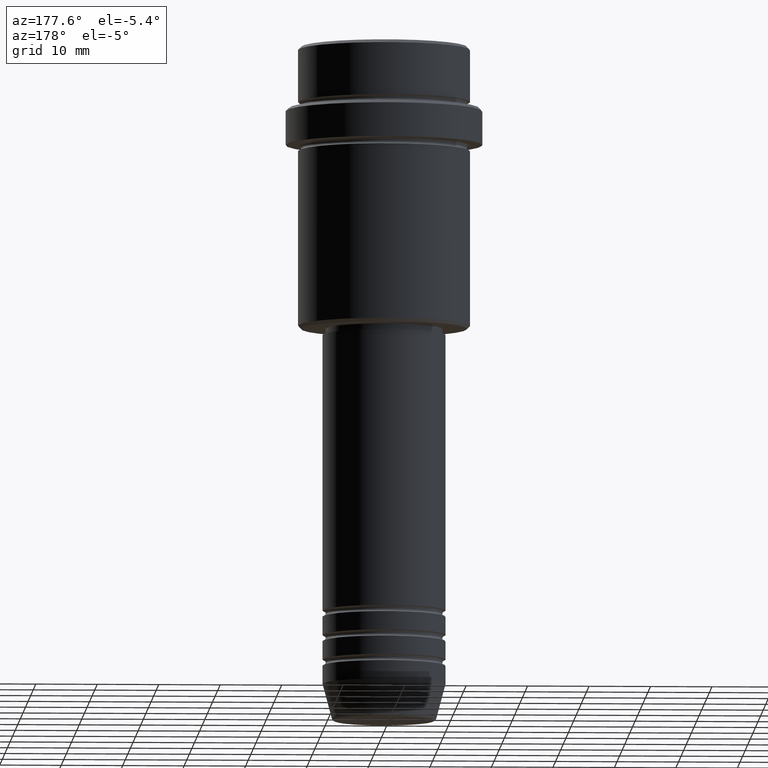
[diagram: clean part render]
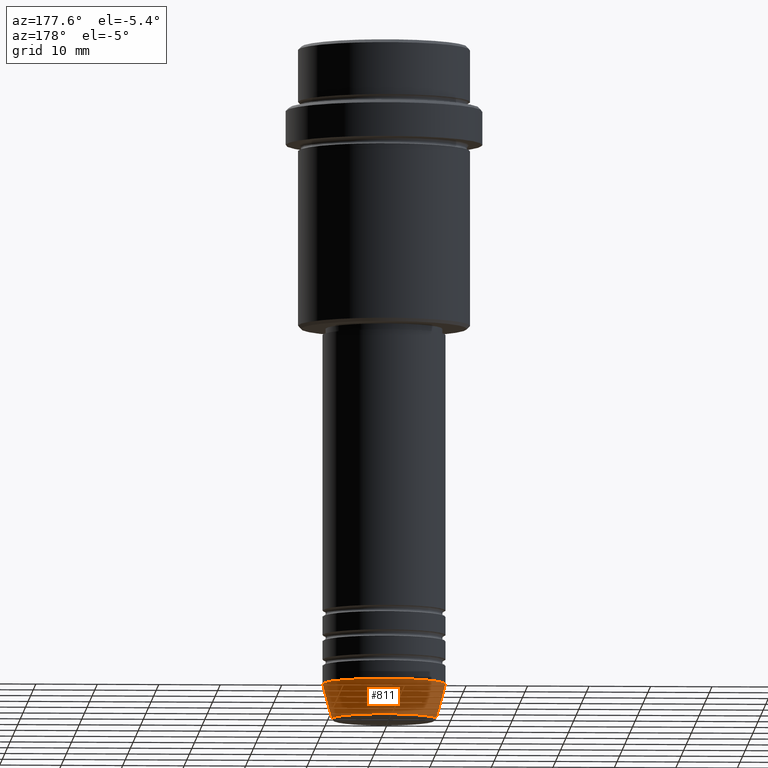
[diagram: same view with one face highlighted and labeled with its STEP entity id]
A machine part, auxiliary view. The second image highlights one B-rep face of the part: STEP entity #811.
In plain terms, the highlighted conical surface has half-angle 15 deg.
Its self-contained STEP definition (entity closure, byte-faithful):
#31 = LINE ( 'NONE', #1105, #643 ) ;
#62 = ORIENTED_EDGE ( 'NONE', *, *, #833, .T. ) ;
#99 = LINE ( 'NONE', #1305, #301 ) ;
#115 = CIRCLE ( 'NONE', #721, 8.491604264568312743 ) ;
#135 = CONICAL_SURFACE ( 'NONE', #185, 10.00000000000000000, 0.2617993877991498519 ) ;
#150 = EDGE_LOOP ( 'NONE', ( #1234, #62, #235, #996 ) ) ;
#185 = AXIS2_PLACEMENT_3D ( 'NONE', #956, #211, #767 ) ;
#211 = DIRECTION ( 'NONE',  ( -0.000000000000000000, -0.000000000000000000, 1.000000000000000000 ) ) ;
#219 = DIRECTION ( 'NONE',  ( -0.2588190451025211281, 3.169619151431769872E-17, 0.9659258262890680902 ) ) ;
#235 = ORIENTED_EDGE ( 'NONE', *, *, #248, .F. ) ;
#248 = EDGE_CURVE ( 'NONE', #572, #965, #485, .T. ) ;
#301 = VECTOR ( 'NONE', #219, 1000.000000000000114 ) ;
#394 = DIRECTION ( 'NONE',  ( 1.000000000000000000, 0.000000000000000000, 0.000000000000000000 ) ) ;
#436 = EDGE_CURVE ( 'NONE', #675, #572, #31, .T. ) ;
#485 = CIRCLE ( 'NONE', #574, 10.00000000000000000 ) ;
#523 = CARTESIAN_POINT ( 'NONE',  ( 0.000000000000000000, 0.000000000000000000, -109.6294095225512706 ) ) ;
#572 = VERTEX_POINT ( 'NONE', #809 ) ;
#574 = AXIS2_PLACEMENT_3D ( 'NONE', #737, #617, #394 ) ;
#617 = DIRECTION ( 'NONE',  ( -0.000000000000000000, -0.000000000000000000, 1.000000000000000000 ) ) ;
#639 = CARTESIAN_POINT ( 'NONE',  ( -10.00000000000000000, 1.224646799147353256E-15, -104.0000000000000142 ) ) ;
#643 = VECTOR ( 'NONE', #773, 1000.000000000000114 ) ;
#675 = VERTEX_POINT ( 'NONE', #814 ) ;
#721 = AXIS2_PLACEMENT_3D ( 'NONE', #523, #1033, #1395 ) ;
#737 = CARTESIAN_POINT ( 'NONE',  ( 0.000000000000000000, 0.000000000000000000, -104.0000000000000142 ) ) ;
#767 = DIRECTION ( 'NONE',  ( 1.000000000000000000, 0.000000000000000000, 0.000000000000000000 ) ) ;
#773 = DIRECTION ( 'NONE',  ( 0.2588190451025211281, 0.000000000000000000, 0.9659258262890680902 ) ) ;
#787 = EDGE_CURVE ( 'NONE', #675, #862, #115, .T. ) ;
#809 = CARTESIAN_POINT ( 'NONE',  ( 10.00000000000000000, 0.000000000000000000, -104.0000000000000142 ) ) ;
#811 = ADVANCED_FACE ( 'NONE', ( #1076 ), #135, .T. ) ;
#814 = CARTESIAN_POINT ( 'NONE',  ( 8.491604264568312743, 0.000000000000000000, -109.6294095225512706 ) ) ;
#833 = EDGE_CURVE ( 'NONE', #862, #965, #99, .T. ) ;
#862 = VERTEX_POINT ( 'NONE', #1381 ) ;
#956 = CARTESIAN_POINT ( 'NONE',  ( 0.000000000000000000, 0.000000000000000000, -104.0000000000000142 ) ) ;
#965 = VERTEX_POINT ( 'NONE', #639 ) ;
#996 = ORIENTED_EDGE ( 'NONE', *, *, #436, .F. ) ;
#1033 = DIRECTION ( 'NONE',  ( -0.000000000000000000, -0.000000000000000000, 1.000000000000000000 ) ) ;
#1076 = FACE_OUTER_BOUND ( 'NONE', #150, .T. ) ;
#1105 = CARTESIAN_POINT ( 'NONE',  ( 10.00000000000000000, 0.000000000000000000, -104.0000000000000142 ) ) ;
#1234 = ORIENTED_EDGE ( 'NONE', *, *, #787, .T. ) ;
#1305 = CARTESIAN_POINT ( 'NONE',  ( -10.00000000000000000, 1.224646799147353256E-15, -104.0000000000000142 ) ) ;
#1381 = CARTESIAN_POINT ( 'NONE',  ( -8.491604264568312743, 1.132284198685156584E-15, -109.6294095225512706 ) ) ;
#1395 = DIRECTION ( 'NONE',  ( 1.000000000000000000, 0.000000000000000000, 0.000000000000000000 ) ) ;